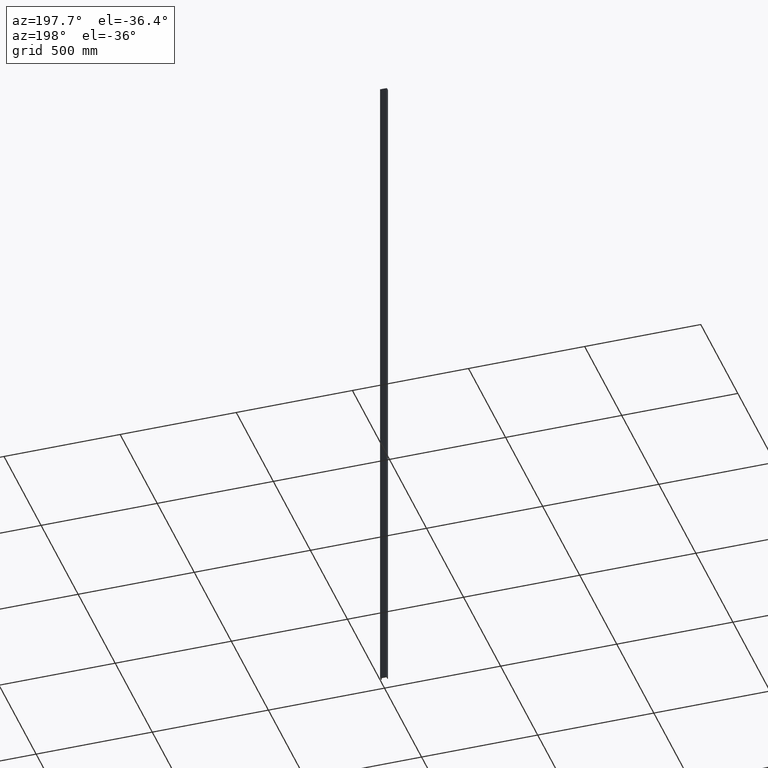
[diagram: clean part render]
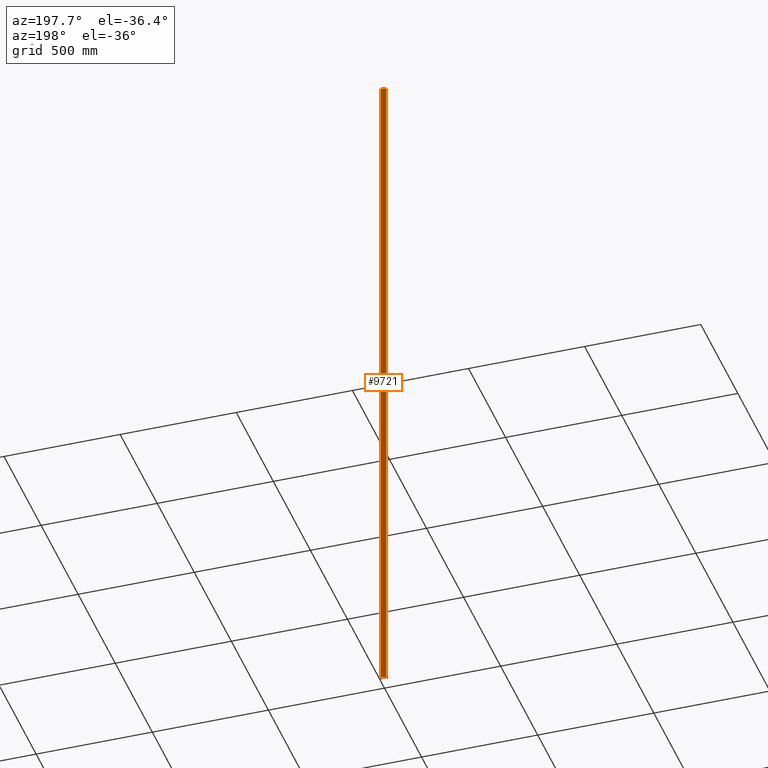
[diagram: same view with one face highlighted and labeled with its STEP entity id]
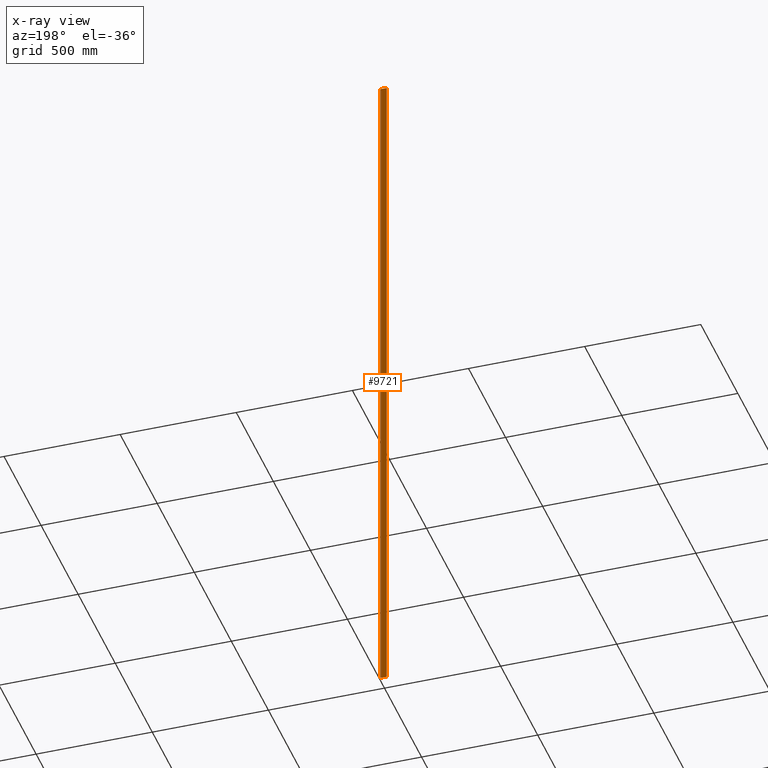
[diagram: x-ray of the same camera — body ghosted, the highlighted face saturated]
A machine part, auxiliary view. The second image highlights one B-rep face of the part: STEP entity #9721.
The next image is the same camera in x-ray: the body ghosted, the highlighted face saturated — about 0% of this face is hidden behind the body in this view.
In plain terms, the highlighted planar face has unit normal (-0, 1, 0).
Its self-contained STEP definition (entity closure, byte-faithful):
#15 = CARTESIAN_POINT ( 'NONE',  ( -13.00000000000000200, 14.00000000000000000, 1500.000000000000000 ) ) ;
#168 = EDGE_CURVE ( 'NONE', #1029, #15200, #1308, .T. ) ;
#463 = CARTESIAN_POINT ( 'NONE',  ( 12.99999999999999800, 14.00000000000000400, 1500.000000000000000 ) ) ;
#526 = ORIENTED_EDGE ( 'NONE', *, *, #8197, .F. ) ;
#792 = DIRECTION ( 'NONE',  ( 1.000000000000000000, 1.334402673828313300E-016, 0.0000000000000000000 ) ) ;
#1029 = VERTEX_POINT ( 'NONE', #13146 ) ;
#1308 = LINE ( 'NONE', #12531, #3906 ) ;
#2202 = DIRECTION ( 'NONE',  ( 1.000000000000000000, 1.334402673828313300E-016, 0.0000000000000000000 ) ) ;
#2451 = DIRECTION ( 'NONE',  ( -1.334402673828313300E-016, 1.000000000000000000, 0.0000000000000000000 ) ) ;
#2787 = VERTEX_POINT ( 'NONE', #463 ) ;
#3867 = VECTOR ( 'NONE', #6863, 1000.000000000000000 ) ;
#3906 = VECTOR ( 'NONE', #792, 1000.000000000000000 ) ;
#4146 = VECTOR ( 'NONE', #13603, 1000.000000000000000 ) ;
#4281 = EDGE_LOOP ( 'NONE', ( #6173, #526, #4984, #12879 ) ) ;
#4984 = ORIENTED_EDGE ( 'NONE', *, *, #11145, .T. ) ;
#5785 = AXIS2_PLACEMENT_3D ( 'NONE', #15, #2451, #10563 ) ;
#6173 = ORIENTED_EDGE ( 'NONE', *, *, #168, .F. ) ;
#6631 = LINE ( 'NONE', #10361, #14052 ) ;
#6863 = DIRECTION ( 'NONE',  ( -0.0000000000000000000, -0.0000000000000000000, -1.000000000000000000 ) ) ;
#7145 = PLANE ( 'NONE',  #5785 ) ;
#8197 = EDGE_CURVE ( 'NONE', #8797, #1029, #13453, .T. ) ;
#8797 = VERTEX_POINT ( 'NONE', #12604 ) ;
#9721 = ADVANCED_FACE ( 'NONE', ( #11746 ), #7145, .T. ) ;
#10361 = CARTESIAN_POINT ( 'NONE',  ( -13.00000000000000200, 14.00000000000000000, 1500.000000000000000 ) ) ;
#10563 = DIRECTION ( 'NONE',  ( -1.000000000000000000, -1.334402673828313300E-016, 0.0000000000000000000 ) ) ;
#10941 = LINE ( 'NONE', #12697, #3867 ) ;
#11145 = EDGE_CURVE ( 'NONE', #8797, #2787, #6631, .T. ) ;
#11746 = FACE_OUTER_BOUND ( 'NONE', #4281, .T. ) ;
#12205 = CARTESIAN_POINT ( 'NONE',  ( -13.00000000000000200, 14.00000000000000000, 1500.000000000000000 ) ) ;
#12531 = CARTESIAN_POINT ( 'NONE',  ( -13.00000000000000200, 14.00000000000000000, -1500.000000000000000 ) ) ;
#12604 = CARTESIAN_POINT ( 'NONE',  ( -13.00000000000000200, 14.00000000000000000, 1500.000000000000000 ) ) ;
#12697 = CARTESIAN_POINT ( 'NONE',  ( 12.99999999999999800, 14.00000000000000400, 1500.000000000000000 ) ) ;
#12879 = ORIENTED_EDGE ( 'NONE', *, *, #14766, .T. ) ;
#13146 = CARTESIAN_POINT ( 'NONE',  ( -13.00000000000000200, 14.00000000000000000, -1500.000000000000000 ) ) ;
#13453 = LINE ( 'NONE', #12205, #4146 ) ;
#13603 = DIRECTION ( 'NONE',  ( -0.0000000000000000000, -0.0000000000000000000, -1.000000000000000000 ) ) ;
#14052 = VECTOR ( 'NONE', #2202, 1000.000000000000000 ) ;
#14655 = CARTESIAN_POINT ( 'NONE',  ( 12.99999999999999800, 14.00000000000000400, -1500.000000000000000 ) ) ;
#14766 = EDGE_CURVE ( 'NONE', #2787, #15200, #10941, .T. ) ;
#15200 = VERTEX_POINT ( 'NONE', #14655 ) ;